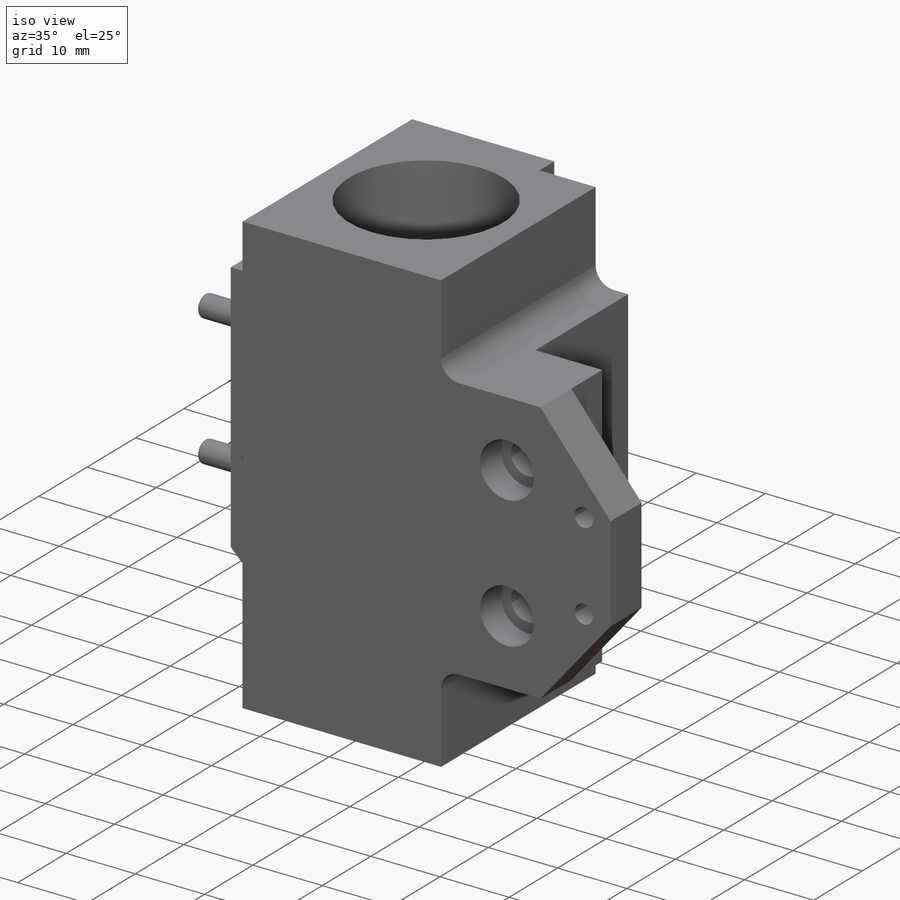
[diagram: iso view]
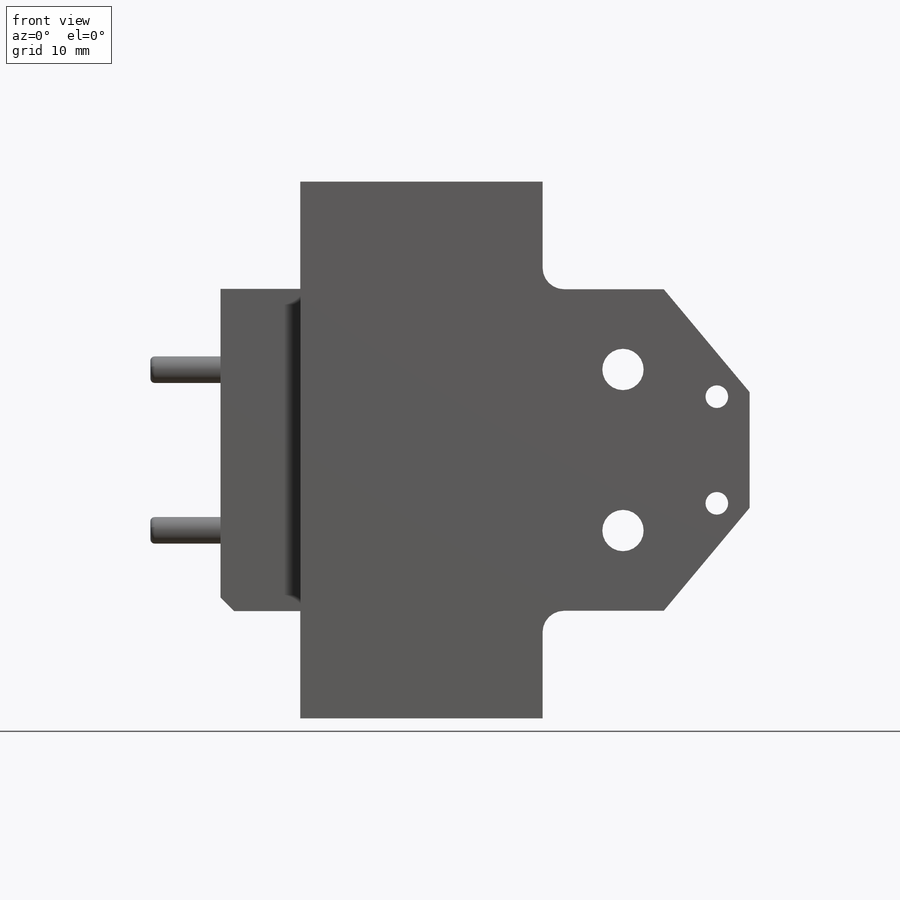
[diagram: front view]
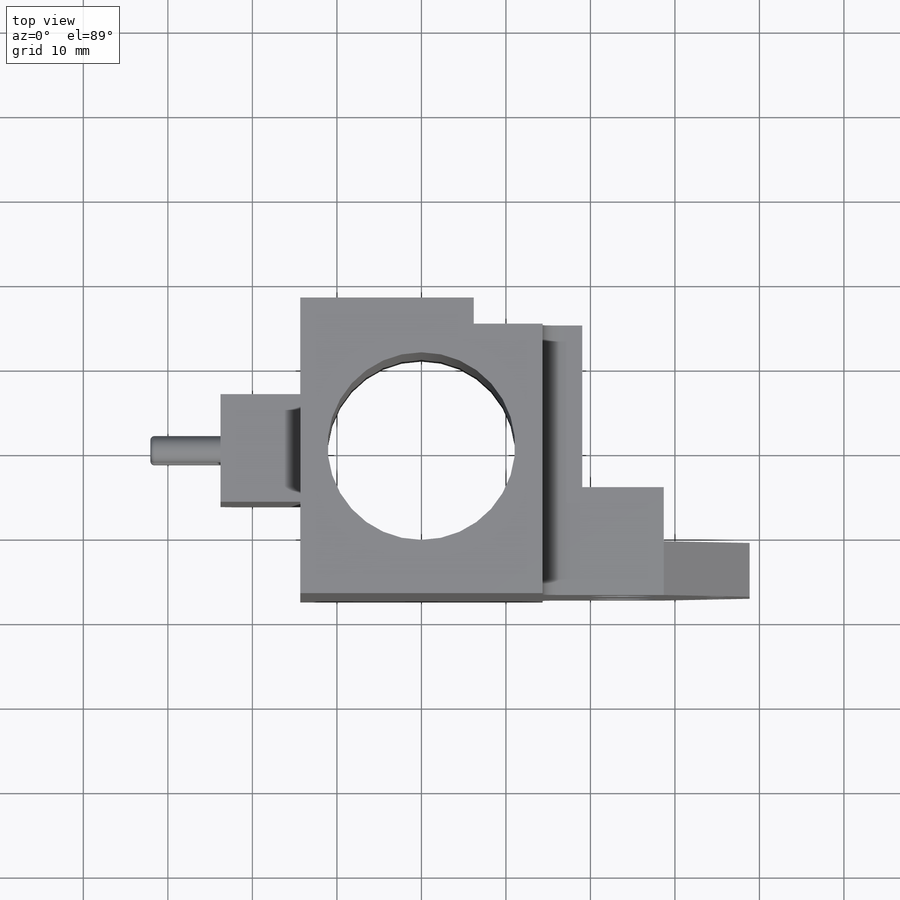
[diagram: top view]
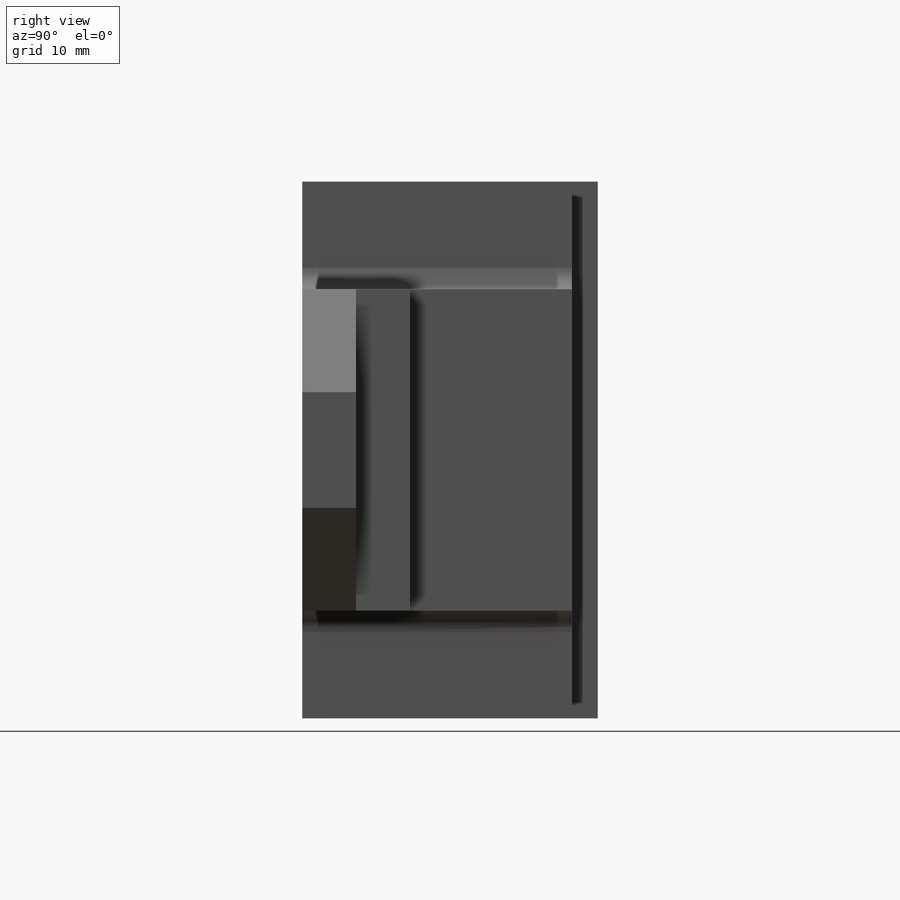
[diagram: right view]
SOLIDWORKS PART (.sldprt)
format: sldprt  version: not decoded by parser v0  size: 356,864 bytes
history: native  units: mm
features: sketch x10, cut_extrude x7, extrude x3, material x1, chamfer x1, fillet x1 (+16 scaffold rows collapsed)
feature tree (39):
  scaffold x16  (default folders/planes/origin — collapsed)
  material  "1060 Alloy"
  sketch  "Sketch1"  dims[D1=22.2mm D2=28.68mm D3=20.54mm D4=53.18mm D5=43.02mm D6=6.3mm D7=34.98mm D8=31.89mm D9=12.76mm D10=6.37mm D11=33.37mm]
  extrude  "Boss-Extrude1"  Depth=31.765mm
  sketch  "Sketch2"  dims[D1=38.12mm D2=12.73mm]
  extrude  "Boss-Extrude2"  Depth=9.43mm
  sketch  "Sketch3"  dims[D1=2.54mm D2=38.05mm D3=13.7mm]
  cut_extrude  "Cut-Extrude1"  [1 undecoded]
  chamfer  "Chamfer1"  Distance=1.6mm Angle=45deg
  sketch  "Sketch4"  dims[D1=2.82mm D2=5.14mm]
  cut_extrude  "Cut-Extrude2"  Depth=11mm
  sketch  "Sketch5"  dims[D1=4.89mm D2=14.17mm]
  cut_extrude  "Cut-Extrude3"  [1 undecoded]
  sketch  "Sketch6"  dims[D1=7.8mm]
  cut_extrude  "Cut-Extrude4"  Depth=4.32mm
  sketch  "Sketch7"  dims[D1=2.68mm D2=9.94mm D3=2.54mm]
  cut_extrude  "Cut-Extrude5"  [1 undecoded]
  sketch  "Sketch8"  dims[D1=4.0mm D2=16.96mm]
  cut_extrude  "Cut-Extrude6"  Depth=10.5mm
  sketch  "Sketch9"  dims[D2=3.14mm D1=22.15mm]
  extrude  "Boss-Extrude3"  Depth=8.3mm
  fillet  "Fillet1"  Radius=0.5mm
  sketch  "Sketch10"  dims[D1=2.15mm]
  cut_extrude  "Cut-Extrude7"  Depth=6.35mm
decode coverage: 19 of 22 modeling features carry decoded parameters
note: 3 parameter values undecoded
summary: no parameter record found for 3 features
note: suppression state not decoded; provenance and decode notes live in map.json
